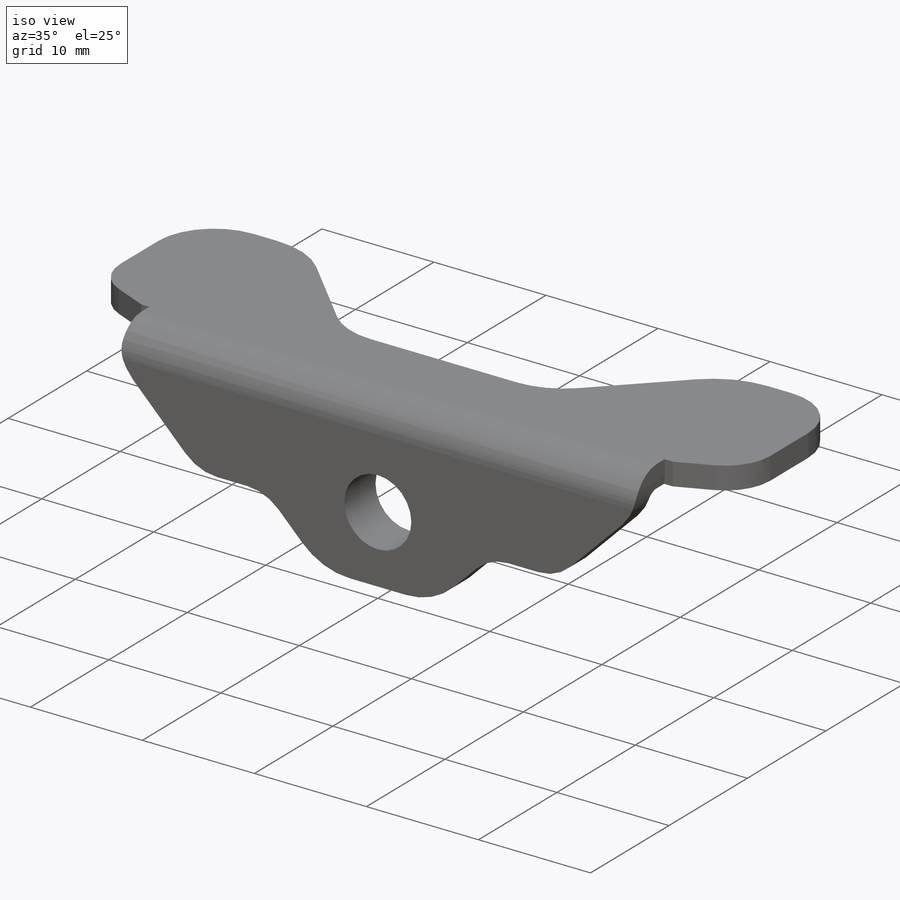
[diagram: iso view]
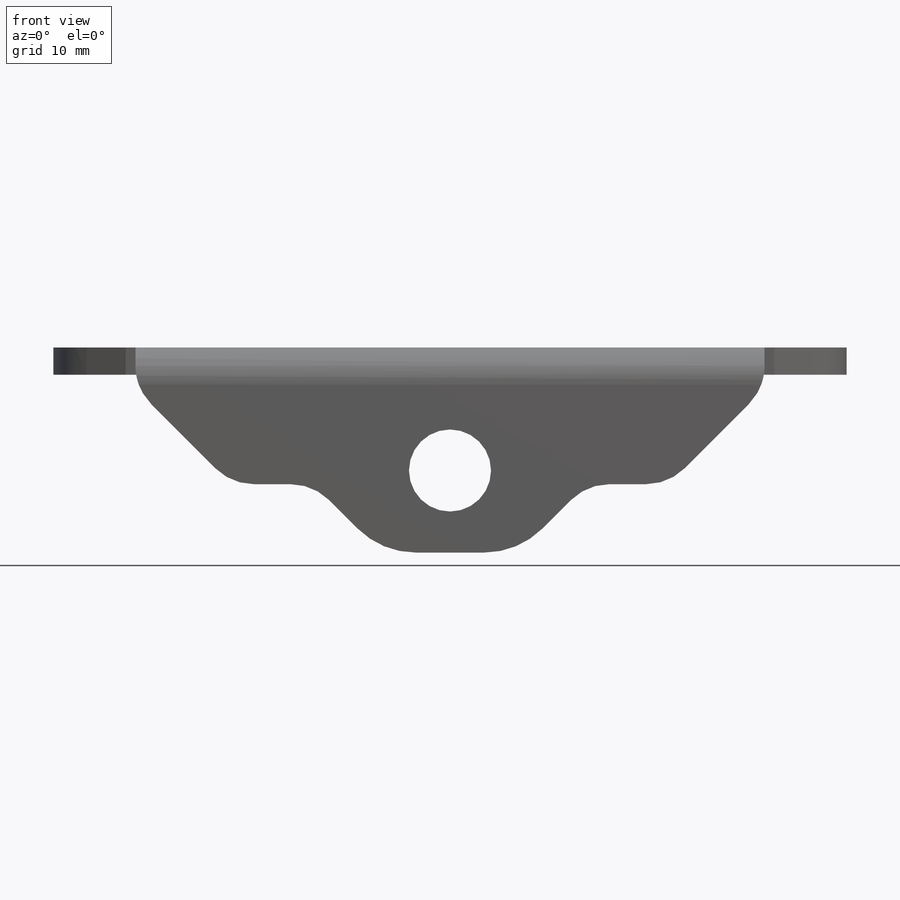
[diagram: front view]
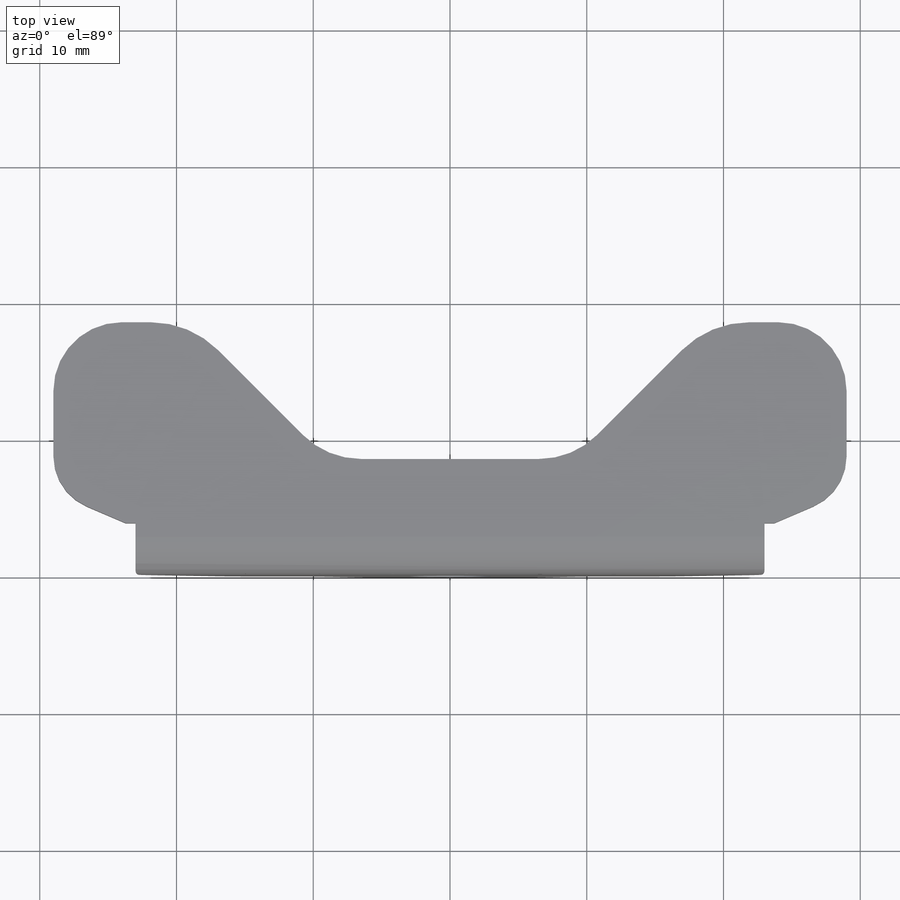
[diagram: top view]
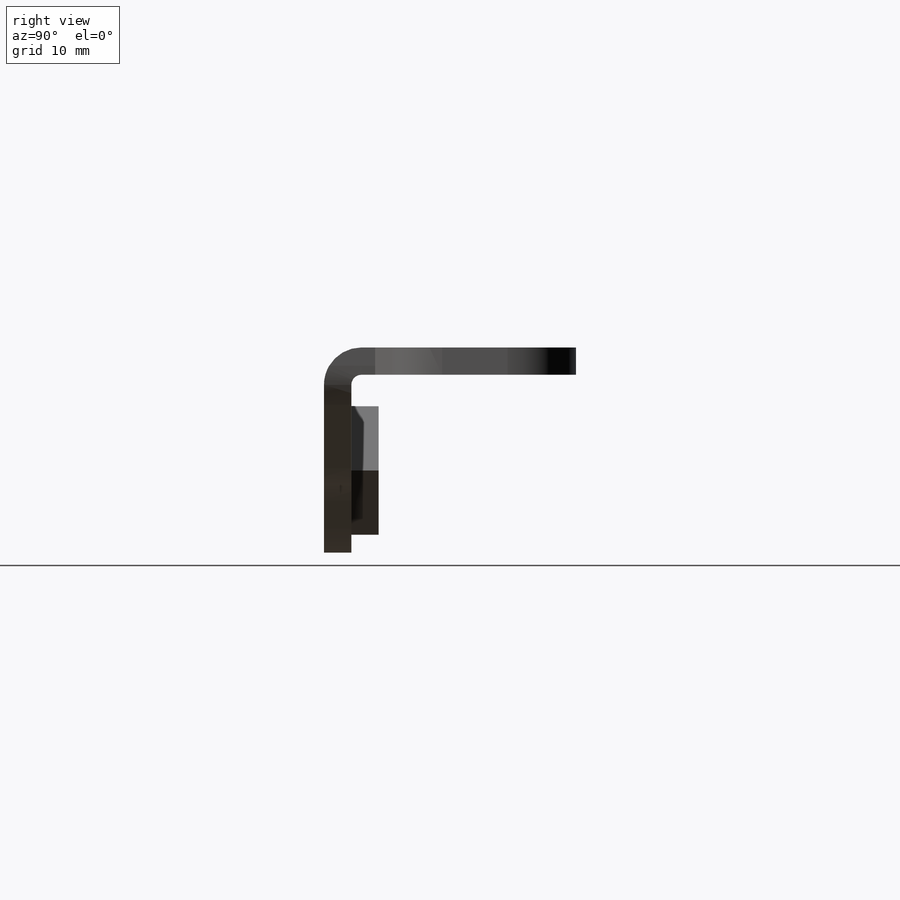
[diagram: right view]
SOLIDWORKS PART (.sldprt)
format: sldprt  version: not decoded by parser v0  size: 333,824 bytes
history: native  units: mm
features: sketch x7, sheet_metal_op x2, cut_extrude x2, fillet x2, material x1, extrude x1 + 1 further entry (+11 scaffold rows collapsed; 1 parser-record rows omitted)
feature tree (28):
  scaffold x11  (default folders/planes/origin — collapsed)
  material  "Material <not specified>"
  sketch  "Sketch1"  dims[D8=5.0mm D9=7.0mm D14=4.0mm D1=63.5mm D2=20.0mm D3=10.0mm D4=10.0mm D5=9.0mm D6=9.0mm D7=~8.429988mm D10=6.0mm D11=6.0mm D12=6.0mm D13=6.0mm D15=29.0mm D16=29.0mm]
  sheet_metal_op  "Sheet-Metal1"
  sheet_metal_op  "Base-Flange1"
  sketch  "Sketch7"  dims[c1.D1=0.7366mm c1.D4=90.0deg c1.D5=1.0 c1.D8=1.0mm c1.D9=1.0mm c2.D1=0.7366mm c2.D2=500.0mm c2.D3=0.0mm c2.D6=10.0mm c2.D7=15.0mm]
  sketch  "Sketch8"  dims[D1=5.0mm D2=5.0mm D3=10.0mm D4=10.0mm D5=12.0mm D6=12.0mm D7=7.0mm D8=7.0mm D9=5.0mm D10=5.0mm]
  cut_extrude  "Cut-Extrude1"  Depth=10mm
  fillet  "Fillet1"  Radius=4mm
  fillet  "Fillet2"  Radius=6mm
  sketch  "Sketch9"  dims[D1=6.0mm D2=9.0mm]
  cut_extrude  "Cut-Extrude2"  Depth=10mm
  sketch  "Sketch10"  dims[D1=9.4mm]
  extrude  "Boss-Extrude1"  Depth=2mm
  "Flat-Pattern1"
  sketch  "Bend-Lines1"
  sketch  "Bounding-Box1"
  parser-record x1  (decoder bookkeeping rows leaked as tree rows — omitted from the tree; the rows remain in map.json)
decode coverage: 10 of 14 modeling features carry decoded parameters; 1 rows unclassified (native names shown)
note: ~ marks probable driven/reference dimensions
note: suppression state not decoded; provenance and decode notes live in map.json
